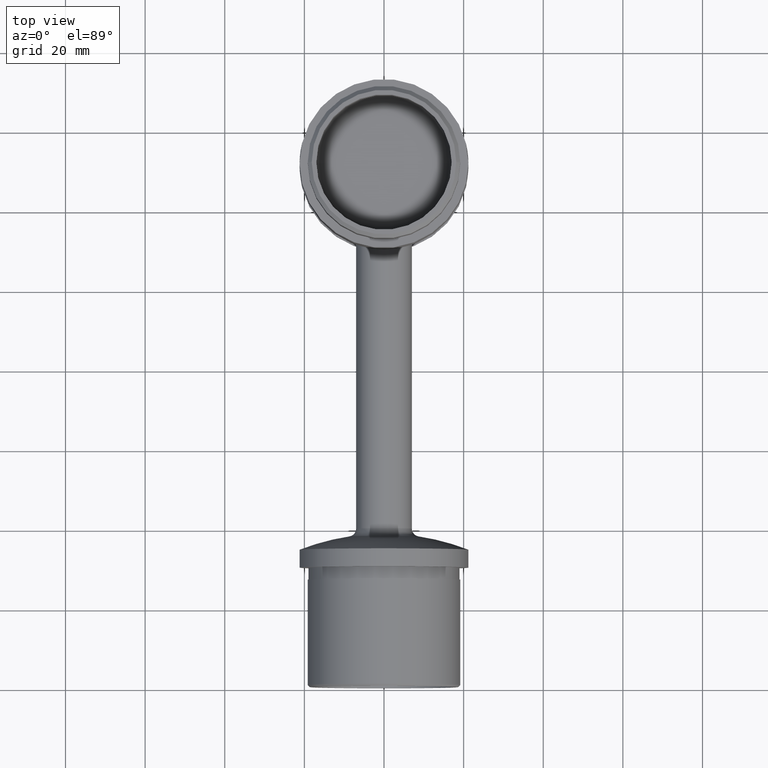
[diagram: clean part render]
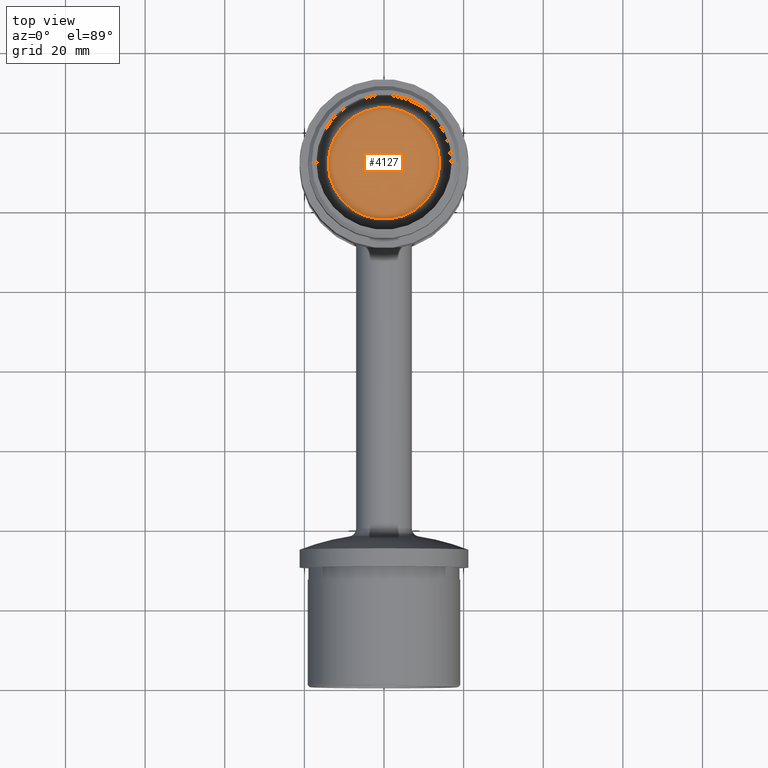
[diagram: same view with one face highlighted and labeled with its STEP entity id]
A machine part, top view. The second image highlights one B-rep face of the part: STEP entity #4127.
In plain terms, the highlighted planar face has unit normal (0, 0, -1).
Its self-contained STEP definition (entity closure, byte-faithful):
#1781 = CARTESIAN_POINT ( 'NONE',  ( -14.00000000000000178, 1.898202538678397557E-15, 0.000000000000000000 ) ) ;
#4127 = ADVANCED_FACE ( 'NONE', ( #19550 ), #13567, .F. ) ;
#6087 = EDGE_LOOP ( 'NONE', ( #18725, #19707 ) ) ;
#7156 = CARTESIAN_POINT ( 'NONE',  ( 0.000000000000000000, 0.000000000000000000, 0.000000000000000000 ) ) ;
#7240 = DIRECTION ( 'NONE',  ( -0.000000000000000000, -0.000000000000000000, -1.000000000000000000 ) ) ;
#7267 = CARTESIAN_POINT ( 'NONE',  ( 0.000000000000000000, 0.000000000000000000, 0.000000000000000000 ) ) ;
#8932 = DIRECTION ( 'NONE',  ( 1.000000000000000000, 0.000000000000000000, 0.000000000000000000 ) ) ;
#10831 = CARTESIAN_POINT ( 'NONE',  ( 14.00000000000000178, 0.000000000000000000, 0.000000000000000000 ) ) ;
#11977 = DIRECTION ( 'NONE',  ( 1.000000000000000000, 0.000000000000000000, 0.000000000000000000 ) ) ;
#12555 = EDGE_CURVE ( 'NONE', #18957, #13019, #14030, .T. ) ;
#13019 = VERTEX_POINT ( 'NONE', #10831 ) ;
#13567 = PLANE ( 'NONE',  #19687 ) ;
#14030 = CIRCLE ( 'NONE', #16345, 14.00000000000000178 ) ;
#15225 = DIRECTION ( 'NONE',  ( 0.000000000000000000, 0.000000000000000000, 1.000000000000000000 ) ) ;
#15312 = AXIS2_PLACEMENT_3D ( 'NONE', #18793, #7240, #18864 ) ;
#15697 = DIRECTION ( 'NONE',  ( -0.000000000000000000, -0.000000000000000000, -1.000000000000000000 ) ) ;
#16345 = AXIS2_PLACEMENT_3D ( 'NONE', #7267, #15697, #8932 ) ;
#16755 = CIRCLE ( 'NONE', #15312, 14.00000000000000178 ) ;
#18725 = ORIENTED_EDGE ( 'NONE', *, *, #20454, .T. ) ;
#18793 = CARTESIAN_POINT ( 'NONE',  ( 0.000000000000000000, 0.000000000000000000, 0.000000000000000000 ) ) ;
#18864 = DIRECTION ( 'NONE',  ( 1.000000000000000000, 0.000000000000000000, 0.000000000000000000 ) ) ;
#18957 = VERTEX_POINT ( 'NONE', #1781 ) ;
#19550 = FACE_OUTER_BOUND ( 'NONE', #6087, .T. ) ;
#19687 = AXIS2_PLACEMENT_3D ( 'NONE', #7156, #15225, #11977 ) ;
#19707 = ORIENTED_EDGE ( 'NONE', *, *, #12555, .T. ) ;
#20454 = EDGE_CURVE ( 'NONE', #13019, #18957, #16755, .T. ) ;